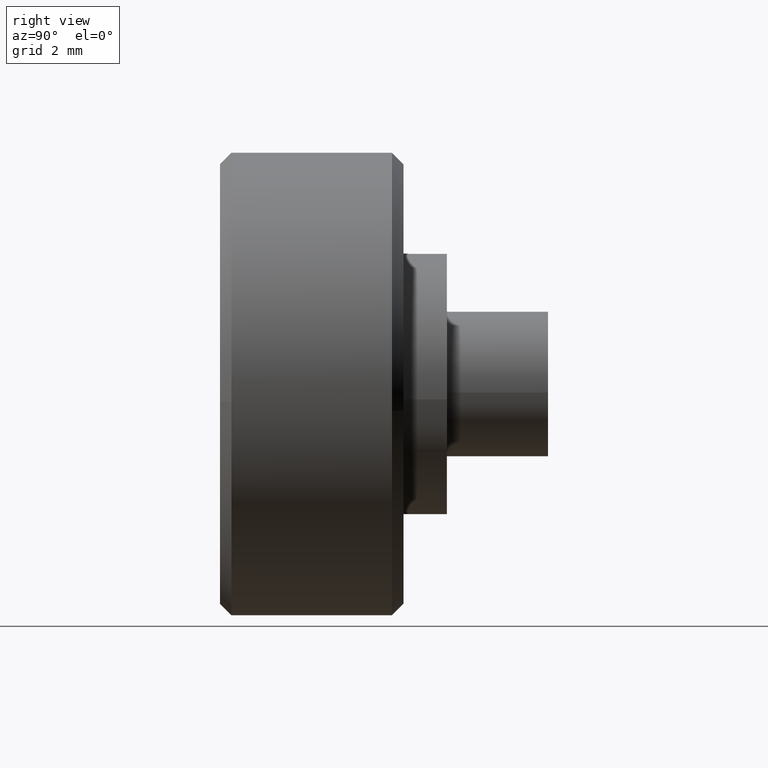
[diagram: clean part render]
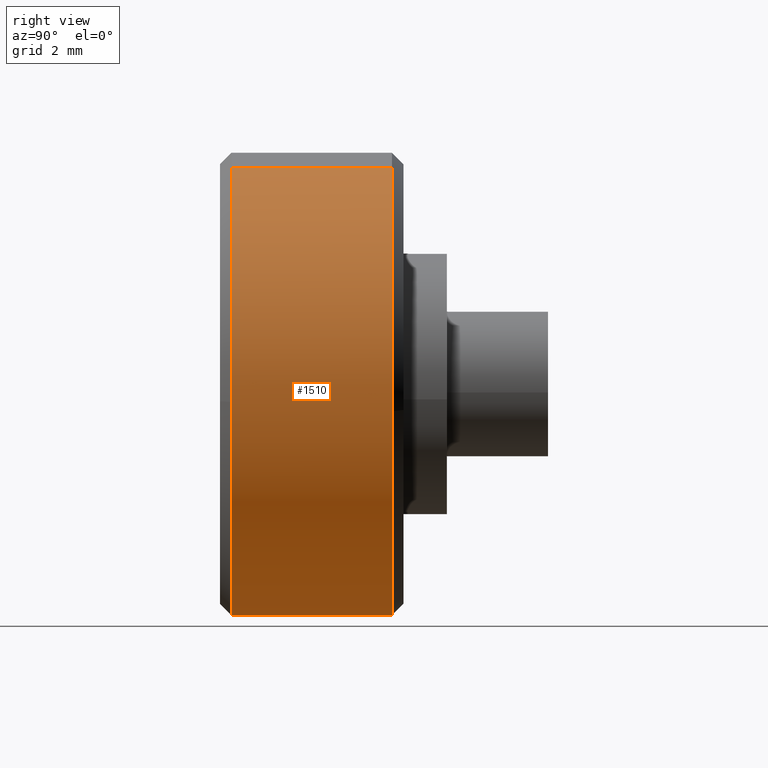
[diagram: same view with one face highlighted and labeled with its STEP entity id]
A machine part, right view. The second image highlights one B-rep face of the part: STEP entity #1510.
In plain terms, the highlighted face is a freeform B-spline surface patch.
Its self-contained STEP definition (entity closure, byte-faithful):
#1174=CARTESIAN_POINT('',(0.0,0.400000000000000,-8.0));
#1175=VERTEX_POINT('',#1174);
#1176=CARTESIAN_POINT('',(7.975338669865577,0.400000000001389,-0.627672765833426));
#1177=VERTEX_POINT('',#1176);
#1178=CARTESIAN_POINT('',(0.0,0.400000000000000,-8.0));
#1179=CARTESIAN_POINT('',(7.395123933246020,0.400000000000000,-8.0));
#1180=CARTESIAN_POINT('',(7.975338669865577,0.400000000001389,-0.627672765833426));
#1188=(BOUNDED_CURVE()B_SPLINE_CURVE(2,(#1178,#1179,#1180),.UNSPECIFIED.,.F.,.U.)B_SPLINE_CURVE_WITH_KNOTS((3,3),(0.0,0.236331300632313),.UNSPECIFIED.)CURVE()GEOMETRIC_REPRESENTATION_ITEM()RATIONAL_B_SPLINE_CURVE((1.0,0.723120658605728,0.969723356170868))REPRESENTATION_ITEM(''));
#1189=EDGE_CURVE('',#1175,#1177,#1188,.T.);
#1237=CARTESIAN_POINT('',(-7.985078721705695,0.400000000000001,0.488382849957833));
#1238=VERTEX_POINT('',#1237);
#1252=CARTESIAN_POINT('',(-7.985078721705695,0.400000000000000,0.488382849957833));
#1253=CARTESIAN_POINT('',(-8.000000000000002,0.400000000000000,0.244419365564827));
#1254=CARTESIAN_POINT('',(-8.0,0.400000000000000,-1.467165E-016));
#1255=CARTESIAN_POINT('',(-8.0,0.400000000000000,-8.0));
#1256=CARTESIAN_POINT('',(0.0,0.400000000000000,-8.0));
#1264=(BOUNDED_CURVE()B_SPLINE_CURVE(2,(#1252,#1253,#1254,#1255,#1256),.UNSPECIFIED.,.F.,.U.)B_SPLINE_CURVE_WITH_KNOTS((3,2,3),(0.739333080361814,0.750000000000000,1.0),.UNSPECIFIED.)CURVE()GEOMETRIC_REPRESENTATION_ITEM()RATIONAL_B_SPLINE_CURVE((0.976072294826647,0.987502926289389,1.0,0.707106781186548,1.0))REPRESENTATION_ITEM(''));
#1265=EDGE_CURVE('',#1238,#1175,#1264,.T.);
#1288=CARTESIAN_POINT('',(2.812943094418373,0.400000000000000,7.489148893403270));
#1289=VERTEX_POINT('',#1288);
#1290=CARTESIAN_POINT('',(7.975338669865577,0.400000000001389,-0.627672765833426));
#1291=CARTESIAN_POINT('',(8.000000000000002,0.400000000000000,-0.314320856071962));
#1292=CARTESIAN_POINT('',(8.0,0.400000000000000,-1.467165E-016));
#1293=CARTESIAN_POINT('',(8.0,0.400000000000000,5.540877873133822));
#1294=CARTESIAN_POINT('',(2.812943094418373,0.400000000000000,7.489148893403270));
#1302=(BOUNDED_CURVE()B_SPLINE_CURVE(2,(#1290,#1291,#1292,#1293,#1294),.UNSPECIFIED.,.F.,.U.)B_SPLINE_CURVE_WITH_KNOTS((3,2,3),(0.236331300632313,0.250000000000000,0.440284200455736),.UNSPECIFIED.)CURVE()GEOMETRIC_REPRESENTATION_ITEM()RATIONAL_B_SPLINE_CURVE((0.969723356170868,0.983986122580819,1.0,0.777068192156701,0.893499590806314))REPRESENTATION_ITEM(''));
#1303=EDGE_CURVE('',#1177,#1289,#1302,.T.);
#1386=CARTESIAN_POINT('',(2.812941999224945,5.949999999999998,7.489149304760366));
#1387=VERTEX_POINT('',#1386);
#1403=CARTESIAN_POINT('',(-7.985078387375440,5.949999999998196,0.488388316285977));
#1404=VERTEX_POINT('',#1403);
#1418=CARTESIAN_POINT('',(-7.985078387375440,5.949999999998196,0.488388316285977));
#1419=CARTESIAN_POINT('',(-7.985078721705695,0.400000000000001,0.488382849957833));
#1420=QUASI_UNIFORM_CURVE('',1,(#1418,#1419),.UNSPECIFIED.,.F.,.U.);
#1421=EDGE_CURVE('',#1404,#1238,#1420,.T.);
#1426=CARTESIAN_POINT('',(2.812941999224945,5.949999999999998,7.489149304760366));
#1427=CARTESIAN_POINT('',(2.812943094418373,0.400000000000000,7.489148893403270));
#1428=QUASI_UNIFORM_CURVE('',1,(#1426,#1427),.UNSPECIFIED.,.F.,.U.);
#1429=EDGE_CURVE('',#1387,#1289,#1428,.T.);
#1434=CARTESIAN_POINT('',(-7.985078387374934,6.088750000000001,0.488388316278856));
#1435=CARTESIAN_POINT('',(-8.473466703653790,6.088750000000001,-7.496690071096078));
#1436=CARTESIAN_POINT('',(-0.488388316278856,6.088750000000001,-7.985078387374934));
#1437=CARTESIAN_POINT('',(7.496690071096078,6.088750000000001,-8.473466703653790));
#1438=CARTESIAN_POINT('',(7.985078387374934,6.088750000000001,-0.488388316278856));
#1439=CARTESIAN_POINT('',(8.345897782954735,6.088750000000000,5.410956654424521));
#1440=CARTESIAN_POINT('',(2.812943795132577,6.088750000000001,7.489148630213257));
#1441=CARTESIAN_POINT('',(-7.985078387374934,0.257781250000001,0.488388316278856));
#1442=CARTESIAN_POINT('',(-8.473466703653790,0.257781250000001,-7.496690071096078));
#1443=CARTESIAN_POINT('',(-0.488388316278856,0.257781250000001,-7.985078387374934));
#1444=CARTESIAN_POINT('',(7.496690071096078,0.257781250000001,-8.473466703653790));
#1445=CARTESIAN_POINT('',(7.985078387374934,0.257781250000001,-0.488388316278856));
#1446=CARTESIAN_POINT('',(8.345897782954735,0.257781250000001,5.410956654424521));
#1447=CARTESIAN_POINT('',(2.812943795132577,0.257781250000001,7.489148630213257));
#1455=(BOUNDED_SURFACE()B_SPLINE_SURFACE(2,1,((#1434,#1441),(#1435,#1442),(#1436,#1443),(#1437,#1444),(#1438,#1445),(#1439,#1446),(#1440,#1447)),.UNSPECIFIED.,.F.,.F.,.U.)B_SPLINE_SURFACE_WITH_KNOTS((3,2,2,3),(2,2),(0.0,13.254833995939039,26.509667991878072,37.113535188629299),(0.0,5.830968750000000),.UNSPECIFIED.)GEOMETRIC_REPRESENTATION_ITEM()RATIONAL_B_SPLINE_SURFACE(((1.0,1.0),(0.707106781186548,0.707106781186548),(1.0,1.0),(0.707106781186548,0.707106781186548),(1.0,1.0),(0.765685424949238,0.765685424949238),(0.906274169979695,0.906274169979695)))REPRESENTATION_ITEM('')SURFACE());
#1456=CARTESIAN_POINT('',(7.944076210909341,5.949999999999953,-0.944273877254476));
#1457=VERTEX_POINT('',#1456);
#1458=CARTESIAN_POINT('',(7.944076210909342,5.949999999999953,-0.944273877254476));
#1459=CARTESIAN_POINT('',(8.0,5.950000000000000,-0.473792957215687));
#1460=CARTESIAN_POINT('',(8.0,5.950000000000000,-1.467165E-016));
#1461=CARTESIAN_POINT('',(8.0,5.949999999999999,5.540878184899050));
#1462=CARTESIAN_POINT('',(2.812941999224944,5.949999999999998,7.489149304760366));
#1470=(BOUNDED_CURVE()B_SPLINE_CURVE(2,(#1458,#1459,#1460,#1461,#1462),.UNSPECIFIED.,.F.,.U.)B_SPLINE_CURVE_WITH_KNOTS((3,2,3),(0.229562473515627,0.250000000000000,0.440284208775499),.UNSPECIFIED.)CURVE()GEOMETRIC_REPRESENTATION_ITEM()RATIONAL_B_SPLINE_CURVE((0.956026754187852,0.976055948333627,1.0,0.777068182409492,0.893499600987734))REPRESENTATION_ITEM(''));
#1471=EDGE_CURVE('',#1457,#1387,#1470,.T.);
#1472=ORIENTED_EDGE('',*,*,#1471,.T.);
#1473=ORIENTED_EDGE('',*,*,#1429,.T.);
#1474=ORIENTED_EDGE('',*,*,#1303,.F.);
#1475=ORIENTED_EDGE('',*,*,#1189,.F.);
#1476=ORIENTED_EDGE('',*,*,#1265,.F.);
#1477=ORIENTED_EDGE('',*,*,#1421,.F.);
#1478=CARTESIAN_POINT('',(0.0,5.950000000000000,-8.0));
#1479=VERTEX_POINT('',#1478);
#1480=CARTESIAN_POINT('',(-7.985078387375441,5.949999999998197,0.488388316285977));
#1481=CARTESIAN_POINT('',(-8.0,5.950000000000000,0.244422106402877));
#1482=CARTESIAN_POINT('',(-8.0,5.950000000000000,-1.467165E-016));
#1483=CARTESIAN_POINT('',(-8.0,5.950000000000000,-8.0));
#1484=CARTESIAN_POINT('',(0.0,5.950000000000000,-8.0));
#1492=(BOUNDED_CURVE()B_SPLINE_CURVE(2,(#1480,#1481,#1482,#1483,#1484),.UNSPECIFIED.,.F.,.U.)B_SPLINE_CURVE_WITH_KNOTS((3,2,3),(0.739332962241358,0.750000000000000,1.0),.UNSPECIFIED.)CURVE()GEOMETRIC_REPRESENTATION_ITEM()RATIONAL_B_SPLINE_CURVE((0.976072041671893,0.987502787902667,1.0,0.707106781186548,1.0))REPRESENTATION_ITEM(''));
#1493=EDGE_CURVE('',#1404,#1479,#1492,.T.);
#1494=ORIENTED_EDGE('',*,*,#1493,.T.);
#1495=CARTESIAN_POINT('',(0.0,5.950000000000000,-8.0));
#1496=CARTESIAN_POINT('',(7.105396207610216,5.950000000000000,-8.0));
#1497=CARTESIAN_POINT('',(7.944076210909342,5.949999999999953,-0.944273877254476));
#1505=(BOUNDED_CURVE()B_SPLINE_CURVE(2,(#1495,#1496,#1497),.UNSPECIFIED.,.F.,.U.)B_SPLINE_CURVE_WITH_KNOTS((3,3),(0.0,0.229562473515627),.UNSPECIFIED.)CURVE()GEOMETRIC_REPRESENTATION_ITEM()RATIONAL_B_SPLINE_CURVE((1.0,0.731050832852920,0.956026754187852))REPRESENTATION_ITEM(''));
#1506=EDGE_CURVE('',#1479,#1457,#1505,.T.);
#1507=ORIENTED_EDGE('',*,*,#1506,.T.);
#1508=EDGE_LOOP('',(#1472,#1473,#1474,#1475,#1476,#1477,#1494,#1507));
#1509=FACE_OUTER_BOUND('',#1508,.T.);
#1510=ADVANCED_FACE('',(#1509),#1455,.T.);